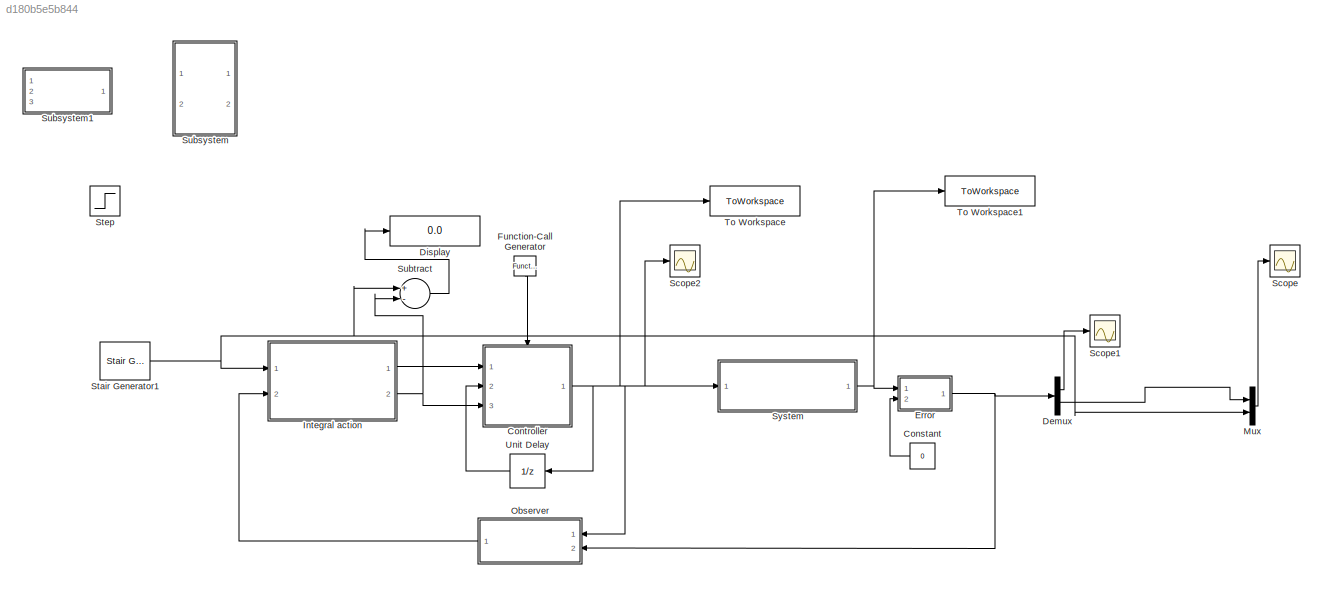
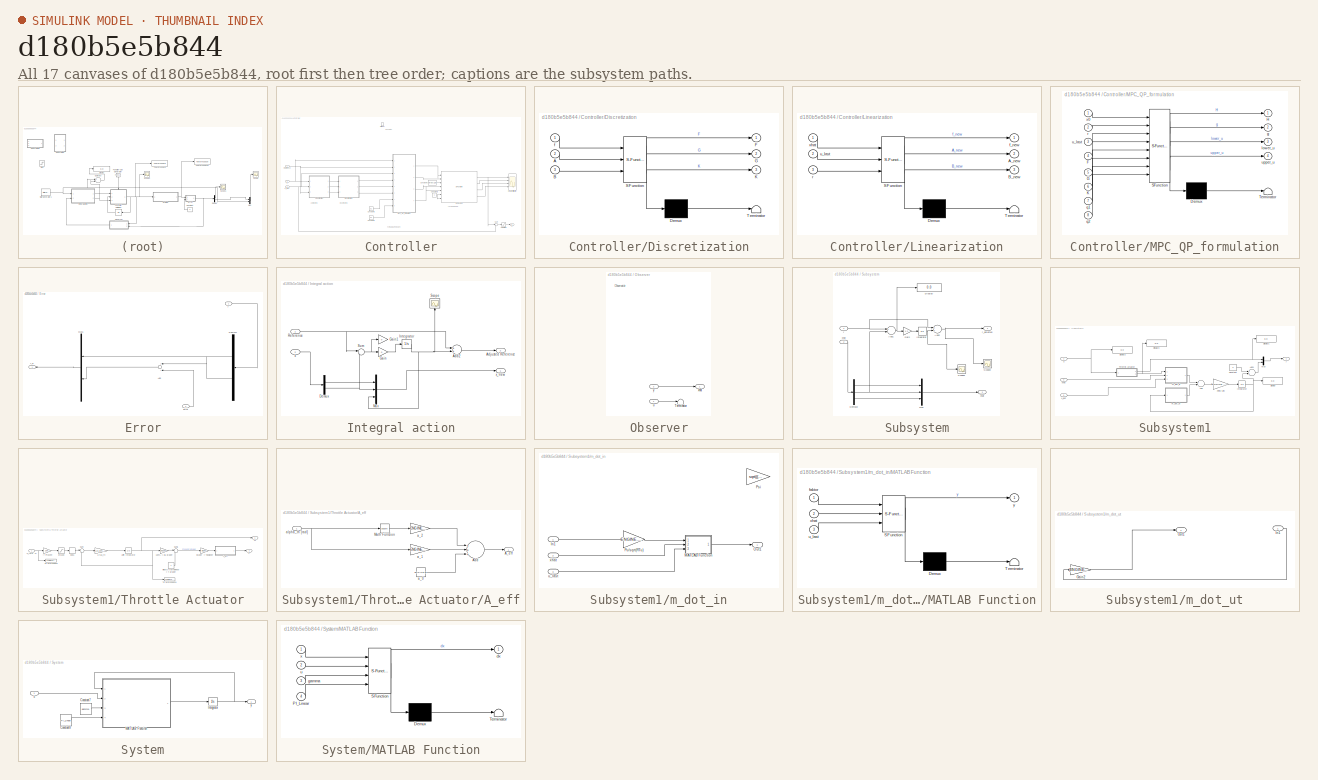
[diagram: thumbnail index - all 17 canvases of the model, root first then tree order]
MODEL slx_d180b5e5b844
KIND model
CONFIG AbsTol = auto
CONFIG EnableMultiTasking = on
CONFIG FixedStep = auto
CONFIG MaxStep = auto
CONFIG MinStep = auto
CONFIG RelTol = 1e-6
CONFIG SampleTimeConstraint = Unconstrained
CONFIG Solver = VariableStepAuto
CONFIG SolverName = VariableStepAuto
CONFIG StartTime = 0.0
CONFIG StopTime = 3
BLOCK [Constant] Constant
  Value = 0
BLOCK [SubSystem] Controller
  Ports = [3, 1, 0, 1]
  RequestExecContextInheritance = off
BLOCK [Constant] Controller/Constant2
  Value = 0
BLOCK [Constant] Controller/Constant5
  Value = q1
BLOCK [Constant] Controller/Constant6
  Value = q2
BLOCK [Constant] Controller/Constant7
  Value = zeros(1,N)
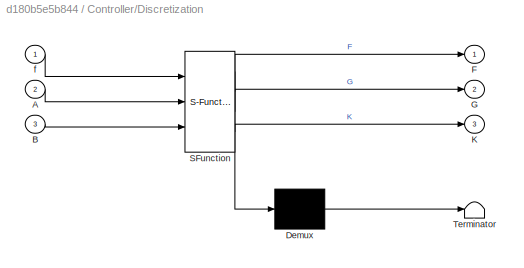
BLOCK [SubSystem] Controller/Discretization
  ErrorFcn = Stateflow.Translate.translate
  PermitHierarchicalResolution = ExplicitOnly
  Ports = [3, 3]
  RequestExecContextInheritance = off
  SFBlockType = MATLAB Function
  TreatAsAtomicUnit = on
BLOCK [Demux] Controller/Discretization/ Demux 
  Outputs = 1
  Ports = [1, 1]
BLOCK [S-Function] Controller/Discretization/ SFunction 
  EnableBusSupport = on
  FunctionName = sf_sfun
  Parameters = Ts
  PortCounts = [3 4]
  Ports = [3, 4]
  SFcnIsStateOwnerBlock = off
  SFunctionDeploymentMode = off
  Tag = Stateflow S-Function 3
BLOCK [Terminator] Controller/Discretization/ Terminator 
BLOCK [Inport] Controller/Discretization/A
  IconDisplay = Port number
  Port = 2
BLOCK [Inport] Controller/Discretization/B
  IconDisplay = Port number
  Port = 3
BLOCK [Outport] Controller/Discretization/F
  IconDisplay = Port number
BLOCK [Outport] Controller/Discretization/G
  IconDisplay = Port number
  Port = 2
BLOCK [Outport] Controller/Discretization/K
  IconDisplay = Port number
  Port = 3
BLOCK [Inport] Controller/Discretization/f
  IconDisplay = Port number
BLOCK [SubSystem] Controller/Linearization
  ErrorFcn = Stateflow.Translate.translate
  PermitHierarchicalResolution = ExplicitOnly
  Ports = [3, 3]
  RequestExecContextInheritance = off
  SFBlockType = MATLAB Function
  TreatAsAtomicUnit = on
BLOCK [Demux] Controller/Linearization/ Demux 
  Outputs = 1
  Ports = [1, 1]
BLOCK [S-Function] Controller/Linearization/ SFunction 
  EnableBusSupport = on
  FunctionName = sf_sfun
  Parameters = gamma,x0
  PortCounts = [3 4]
  Ports = [3, 4]
  SFcnIsStateOwnerBlock = off
  SFunctionDeploymentMode = off
  Tag = Stateflow S-Function 1
BLOCK [Terminator] Controller/Linearization/ Terminator 
BLOCK [Outport] Controller/Linearization/A_new
  IconDisplay = Port number
  Port = 2
BLOCK [Outport] Controller/Linearization/B_new
  IconDisplay = Port number
  Port = 3
BLOCK [Outport] Controller/Linearization/f_new
  IconDisplay = Port number
BLOCK [Inport] Controller/Linearization/r
  IconDisplay = Port number
  Port = 3
BLOCK [Inport] Controller/Linearization/u_last
  IconDisplay = Port number
  Port = 2
BLOCK [Inport] Controller/Linearization/xhat
  IconDisplay = Port number
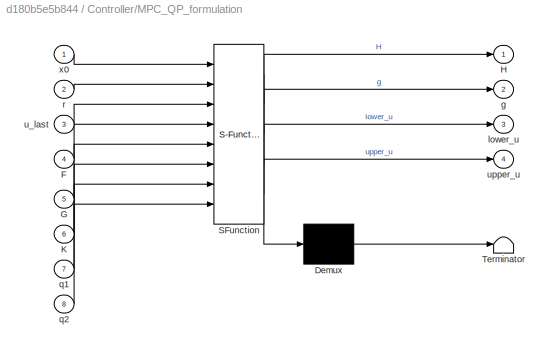
BLOCK [SubSystem] Controller/MPC_QP_formulation
  ErrorFcn = Stateflow.Translate.translate
  PermitHierarchicalResolution = ExplicitOnly
  Ports = [8, 4]
  RequestExecContextInheritance = off
  SFBlockType = MATLAB Function
  TreatAsAtomicUnit = on
BLOCK [Demux] Controller/MPC_QP_formulation/ Demux 
  Outputs = 1
  Ports = [1, 1]
BLOCK [S-Function] Controller/MPC_QP_formulation/ SFunction 
  EnableBusSupport = on
  FunctionName = sf_sfun
  Parameters = M,N,m,n
  PortCounts = [8 5]
  Ports = [8, 5]
  SFcnIsStateOwnerBlock = off
  SFunctionDeploymentMode = off
  Tag = Stateflow S-Function 4
BLOCK [Terminator] Controller/MPC_QP_formulation/ Terminator 
BLOCK [Inport] Controller/MPC_QP_formulation/F
  IconDisplay = Port number
  Port = 4
BLOCK [Inport] Controller/MPC_QP_formulation/G
  IconDisplay = Port number
  Port = 5
BLOCK [Outport] Controller/MPC_QP_formulation/H
  IconDisplay = Port number
BLOCK [Inport] Controller/MPC_QP_formulation/K
  IconDisplay = Port number
  Port = 6
BLOCK [Outport] Controller/MPC_QP_formulation/g
  IconDisplay = Port number
  Port = 2
BLOCK [Outport] Controller/MPC_QP_formulation/lower_u
  IconDisplay = Port number
  Port = 3
BLOCK [Inport] Controller/MPC_QP_formulation/q1
  IconDisplay = Port number
  Port = 7
BLOCK [Inport] Controller/MPC_QP_formulation/q2
  IconDisplay = Port number
  Port = 8
BLOCK [Inport] Controller/MPC_QP_formulation/r
  IconDisplay = Port number
  Port = 2
BLOCK [Inport] Controller/MPC_QP_formulation/u_last
  IconDisplay = Port number
  Port = 3
BLOCK [Outport] Controller/MPC_QP_formulation/upper_u
  IconDisplay = Port number
  Port = 4
BLOCK [Inport] Controller/MPC_QP_formulation/x0
  IconDisplay = Port number
BLOCK [Inport] Controller/Reference
  IconDisplay = Port number
  Port = 3
BLOCK [Saturate] Controller/Saturation
  InputPortMap = u0
  LowerLimit = 0
  Ports = [1, 1]
  UpperLimit = 1
BLOCK [Sum] Controller/Sum
  IconShape = round
  InputSameDT = off
  Inputs = |++
  OutDataTypeStr = Inherit: Inherit via internal rule
  Ports = [2, 1]
  SaturateOnIntegerOverflow = off
BLOCK [TriggerPort] Controller/Trigger
  PortDimensions = 1
  Ports = []
  StatesWhenEnabling = held
  TriggerType = function-call
  VariantControl = Variant
BLOCK [S-Function] Controller/qpOASES
  EnableBusSupport = off
  FunctionName = qpOASES_SQProblem
  Ports = [7, 4]
  SFcnIsStateOwnerBlock = off
  SFunctionDeploymentMode = off
BLOCK [Outport] Controller/u
  IconDisplay = Port number
BLOCK [Inport] Controller/u_last
  IconDisplay = Port number
  Port = 2
  PortDimensions = 1
BLOCK [Inport] Controller/x
  IconDisplay = Port number
BLOCK [Scope] Controller/x, fval, exitflag, iter
  Floating = off
  NumInputPorts = 4
  Ports = [4]
  ScopeSpecificationString = Simulink.scopes.TimeScopeBlockCfg('CurrentConfiguration', extmgr.ConfigurationSet(extmgr.Configuration('Core','General UI',true),extmgr.Configuration('Core','Source UI',true),extmgr.Configuration('Sources','WiredSimulink',true),extmgr.Configuration('Visuals','Time Domain',true,'SerializedDisplays',{struct('MinYLimReal','-125000000000000000000.00000','MaxYLimReal','125000000000000000000.00000','YLa...<+3557ch>
BLOCK [Demux] Demux
  DisplayOption = bar
  Outputs = 2
  Ports = [1, 2]
BLOCK [Display] Display
  Decimation = 1
  Ports = [1]
BLOCK [SubSystem] Error
  Ports = [2, 1]
  RequestExecContextInheritance = off
BLOCK [Sum] Error/Add
  InputSameDT = off
  OutDataTypeStr = Inherit: Inherit via internal rule
  Ports = [2, 1]
  SaturateOnIntegerOverflow = off
BLOCK [Demux] Error/Demux1
  DisplayOption = bar
  Outputs = 2
  Ports = [1, 2]
BLOCK [Inport] Error/Error
  IconDisplay = Port number
  Port = 2
BLOCK [Mux] Error/Mux1
  DisplayOption = bar
  Inputs = 2
  Ports = [2, 1]
BLOCK [Inport] Error/y
  IconDisplay = Port number
BLOCK [Outport] Error/y_e
  IconDisplay = Port number
BLOCK [Reference] Function-Call Generator  REF=simulink/Ports &
Subsystems/Function-Call
Generator
  Ports = [0, 1]
  SourceBlock = simulink/Ports &\nSubsystems/Function-Call\nGenerator
  SourceProductBaseCode = SL
  SourceProductName = Simulink
  SourceType = Function-Call Generator
BLOCK [SubSystem] Integral action
  Ports = [2, 2]
  RequestExecContextInheritance = off
BLOCK [Sum] Integral action/Add2
  InputSameDT = off
  OutDataTypeStr = Inherit: Inherit via internal rule
  Ports = [2, 1]
  SaturateOnIntegerOverflow = off
BLOCK [Outport] Integral action/Adjusted Reference
  IconDisplay = Port number
  Port = 2
BLOCK [Demux] Integral action/Demux
  DisplayOption = bar
  Outputs = 2
  Ports = [1, 2]
BLOCK [Gain] Integral action/Gain
  Gain = 0
  OutDataTypeStr = Inherit: Inherit via internal rule
  ParamDataTypeStr = Inherit: Inherit via internal rule
  SaturateOnIntegerOverflow = off
BLOCK [Gain] Integral action/Gain1
  Commented = on
  Gain = 0
  OutDataTypeStr = Inherit: Inherit via internal rule
  ParamDataTypeStr = Inherit: Inherit via internal rule
  SaturateOnIntegerOverflow = off
BLOCK [Integrator] Integral action/Integrator
  Ports = [1, 1]
BLOCK [Mux] Integral action/Mux
  DisplayOption = bar
  Inputs = 3
  Ports = [3, 1]
BLOCK [Inport] Integral action/Reference
  IconDisplay = Port number
BLOCK [Scope] Integral action/Scope
  Floating = off
  NumInputPorts = 1
  Ports = [1]
  ScopeSpecificationString = Simulink.scopes.TimeScopeBlockCfg('CurrentConfiguration', extmgr.ConfigurationSet(extmgr.Configuration('Core','General UI',true),extmgr.Configuration('Core','Source UI',true),extmgr.Configuration('Sources','WiredSimulink',true,'DataLoggingVariableName','ScopeData1'),extmgr.Configuration('Visuals','Time Domain',true,'SerializedDisplays',{struct('MinYLimReal','-1232.13039','MaxYLimReal','136.90338',...<+1443ch>
BLOCK [Sum] Integral action/Sum
  IconShape = round
  InputSameDT = off
  Inputs = |+-
  OutDataTypeStr = Inherit: Inherit via internal rule
  Ports = [2, 1]
  SaturateOnIntegerOverflow = off
BLOCK [Inport] Integral action/x
  IconDisplay = Port number
  Port = 2
BLOCK [Outport] Integral action/x_new
  IconDisplay = Port number
BLOCK [Mux] Mux
  DisplayOption = bar
  Inputs = 2
  Ports = [2, 1]
BLOCK [SubSystem] Observer
  Ports = [2, 1]
  RequestExecContextInheritance = off
BLOCK [Terminator] Observer/Terminator
BLOCK [Inport] Observer/u
  IconDisplay = Port number
BLOCK [Outport] Observer/xhat
  IconDisplay = Port number
BLOCK [Inport] Observer/y
  IconDisplay = Port number
  Port = 2
BLOCK [Scope] Scope
  Floating = off
  NumInputPorts = 1
  Ports = [1]
  ScopeSpecificationString = Simulink.scopes.TimeScopeBlockCfg('CurrentConfiguration', extmgr.ConfigurationSet(extmgr.Configuration('Core','General UI',true),extmgr.Configuration('Core','Source UI',true),extmgr.Configuration('Sources','WiredSimulink',true,'DataLoggingVariableName','ScopeData1'),extmgr.Configuration('Visuals','Time Domain',true,'SerializedDisplays',{struct('MinYLimReal','12499.99638','MaxYLimReal','87500.0004'...<+1486ch>
BLOCK [Scope] Scope1
  Floating = off
  NumInputPorts = 1
  Ports = [1]
  ScopeSpecificationString = Simulink.scopes.TimeScopeBlockCfg('CurrentConfiguration', extmgr.ConfigurationSet(extmgr.Configuration('Core','General UI',true),extmgr.Configuration('Core','Source UI',true),extmgr.Configuration('Sources','WiredSimulink',true,'DataLoggingVariableName','ScopeData2'),extmgr.Configuration('Visuals','Time Domain',true,'SerializedDisplays',{struct('MinYLimReal','0.13102','MaxYLimReal','0.59068','YLabe...<+1364ch>
BLOCK [Scope] Scope2
  Floating = off
  NumInputPorts = 1
  Ports = [1]
  ScopeSpecificationString = Simulink.scopes.TimeScopeBlockCfg('CurrentConfiguration', extmgr.ConfigurationSet(extmgr.Configuration('Core','General UI',true),extmgr.Configuration('Core','Source UI',true),extmgr.Configuration('Sources','WiredSimulink',true,'DataLoggingVariableName','ScopeData3'),extmgr.Configuration('Visuals','Time Domain',true,'SerializedDisplays',{struct('MinYLimReal','-0.05623','MaxYLimReal','1.11736','YLab...<+1394ch>
BLOCK [Reference] Stair Generator1  REF=powerlib_meascontrol/Pulse & Signal
Generators/Stair
Generator
  Ports = [0, 1]
  SourceBlock = powerlib_meascontrol/Pulse & Signal\nGenerators/Stair\nGenerator
  SourceProductBaseCode = PS
  SourceProductName = Simscape Electrical
  SourceType = Stair Generator
BLOCK [Step] Step
  After = 6e4
  Before = 2e4
  Commented = on
  SampleTime = 0
  Time = 4
BLOCK [SubSystem] Subsystem
  Commented = on
  Ports = [2, 2]
  RequestExecContextInheritance = off
BLOCK [Sum] Subsystem/Add1
  InputSameDT = off
  Inputs = +-
  OutDataTypeStr = Inherit: Inherit via internal rule
  Ports = [2, 1]
  SaturateOnIntegerOverflow = off
BLOCK [Sum] Subsystem/Add2
  InputSameDT = off
  OutDataTypeStr = Inherit: Inherit via internal rule
  Ports = [2, 1]
  SaturateOnIntegerOverflow = off
BLOCK [Demux] Subsystem/Demux2
  DisplayOption = bar
  Outputs = 3
  Ports = [1, 3]
BLOCK [Display] Subsystem/Display
  Decimation = 1
  Ports = [1]
BLOCK [Gain] Subsystem/Gain
  Gain = 1.2
  OutDataTypeStr = Inherit: Inherit via internal rule
  ParamDataTypeStr = Inherit: Inherit via internal rule
  SaturateOnIntegerOverflow = off
BLOCK [Integrator] Subsystem/Integrator
  Ports = [1, 1]
BLOCK [Mux] Subsystem/Mux
  DisplayOption = bar
  Inputs = 3
  Ports = [3, 1]
BLOCK [Scope] Subsystem/Scope1
  Floating = off
  NumInputPorts = 1
  Ports = [1]
  ScopeSpecificationString = Simulink.scopes.TimeScopeBlockCfg('CurrentConfiguration', extmgr.ConfigurationSet(extmgr.Configuration('Core','General UI',true),extmgr.Configuration('Core','Source UI',true),extmgr.Configuration('Sources','WiredSimulink',true,'DataLoggingVariableName','ScopeData2'),extmgr.Configuration('Visuals','Time Domain',true,'SerializedDisplays',{struct('MinYLimReal','-113.13235','MaxYLimReal','1017.29075',...<+1412ch>
BLOCK [Scope] Subsystem/Scope2
  Floating = off
  NumInputPorts = 1
  Ports = [1]
  ScopeSpecificationString = Simulink.scopes.TimeScopeBlockCfg('CurrentConfiguration', extmgr.ConfigurationSet(extmgr.Configuration('Core','General UI',true),extmgr.Configuration('Core','Source UI',true),extmgr.Configuration('Sources','WiredSimulink',true,'DataLoggingVariableName','ScopeData3'),extmgr.Configuration('Visuals','Time Domain',true,'SerializedDisplays',{struct('MinYLimReal','3886.86765','MaxYLimReal','45017.29075'...<+1414ch>
BLOCK [Inport] Subsystem/r
  IconDisplay = Port number
BLOCK [Outport] Subsystem/r_adjusted
  IconDisplay = Port number
BLOCK [Inport] Subsystem/xhat
  IconDisplay = Port number
  Port = 2
BLOCK [Outport] Subsystem/xhat 
  IconDisplay = Port number
  Port = 2
BLOCK [SubSystem] Subsystem1
  Commented = on
  Ports = [3, 1]
  RequestExecContextInheritance = off
BLOCK [Sum] Subsystem1/Add
  InputSameDT = off
  Inputs = +-
  OutDataTypeStr = Inherit: Inherit via internal rule
  Ports = [2, 1]
  SaturateOnIntegerOverflow = off
BLOCK [Sum] Subsystem1/Add1
  InputSameDT = off
  OutDataTypeStr = Inherit: Inherit via internal rule
  Ports = [2, 1]
  SaturateOnIntegerOverflow = off
BLOCK [Constant] Subsystem1/Constant
  Value = 0
BLOCK [Display] Subsystem1/Display
  Decimation = 1
  Ports = [1]
BLOCK [Display] Subsystem1/Display1
  Decimation = 1
  Ports = [1]
BLOCK [Display] Subsystem1/Display2
  Decimation = 1
  Ports = [1]
BLOCK [Display] Subsystem1/Display3
  Decimation = 1
  Ports = [1]
BLOCK [Integrator] Subsystem1/Integrator
  InitialCondition = 25000
  Ports = [1, 1]
BLOCK [Mux] Subsystem1/Mux
  DisplayOption = bar
  Inputs = 2
  Ports = [2, 1]
BLOCK [Gain] Subsystem1/RTim//Vim
  Gain = ENGINE.R*ENGINE.Tim/ENGINE.Vim
  OutDataTypeStr = Inherit: Inherit via internal rule
  ParamDataTypeStr = Inherit: Inherit via internal rule
  SaturateOnIntegerOverflow = off
BLOCK [SubSystem] Subsystem1/Throttle Actuator
  Ports = [1, 2]
  RequestExecContextInheritance = off
BLOCK [Gain] Subsystem1/Throttle Actuator/-> Procent
  Gain = 100
  OutDataTypeStr = Inherit: Inherit via internal rule
  ParamDataTypeStr = Inherit: Inherit via internal rule
  SaturateOnIntegerOverflow = off
BLOCK [TransportDelay] Subsystem1/Throttle Actuator/0p01
  DelayTime = 0.02
  Ports = [1, 1]
BLOCK [Saturate] Subsystem1/Throttle Actuator/0to100
  InputPortMap = u0
  LowerLimit = 0
  Ports = [1, 1]
  UpperLimit = 100
BLOCK [Gain] Subsystem1/Throttle Actuator/1//tau_th
  Gain = 1/0.04426
  OutDataTypeStr = Inherit: Inherit via internal rule
  ParamDataTypeStr = Inherit: Inherit via internal rule
  SaturateOnIntegerOverflow = off
BLOCK [Gain] Subsystem1/Throttle Actuator/100% = 86 grader
  Gain = 86/100
  OutDataTypeStr = Inherit: Inherit via internal rule
  ParamDataTypeStr = Inherit: Inherit via internal rule
  SaturateOnIntegerOverflow = off
BLOCK [Outport] Subsystem1/Throttle Actuator/A 
  IconDisplay = Port number
  Port = 2
  VectorParamsAs1DForOutWhenUnconnected = off
BLOCK [SubSystem] Subsystem1/Throttle Actuator/A_eff
  Ports = [1, 1]
  RequestExecContextInheritance = off
BLOCK [Outport] Subsystem1/Throttle Actuator/A_eff/A_eff
  IconDisplay = Port number
  VectorParamsAs1DForOutWhenUnconnected = off
BLOCK [Sum] Subsystem1/Throttle Actuator/A_eff/Add
  InputSameDT = off
  Inputs = +++
  OutDataTypeStr = Inherit: Inherit via internal rule
  Ports = [3, 1]
  SaturateOnIntegerOverflow = off
BLOCK [Math] Subsystem1/Throttle Actuator/A_eff/Math Function
  Operator = square
  Ports = [1, 1]
BLOCK [Constant] Subsystem1/Throttle Actuator/A_eff/a_0
  Value = ENGINE.a0
BLOCK [Gain] Subsystem1/Throttle Actuator/A_eff/a_1
  Gain = ENGINE.a1
  OutDataTypeStr = Inherit: Inherit via internal rule
  ParamDataTypeStr = Inherit: Inherit via internal rule
  SaturateOnIntegerOverflow = off
BLOCK [Gain] Subsystem1/Throttle Actuator/A_eff/a_2
  Gain = ENGINE.a2
  OutDataTypeStr = Inherit: Inherit via internal rule
  ParamDataTypeStr = Inherit: Inherit via internal rule
  SaturateOnIntegerOverflow = off
BLOCK [Inport] Subsystem1/Throttle Actuator/A_eff/alpha_th [rad]
  IconDisplay = Port number
BLOCK [Gain] Subsystem1/Throttle Actuator/Grader -> Radianer
  Gain = pi/180
  OutDataTypeStr = Inherit: Inherit via internal rule
  ParamDataTypeStr = Inherit: Inherit via internal rule
  SaturateOnIntegerOverflow = off
BLOCK [Integrator] Subsystem1/Throttle Actuator/Limit Integrator
  LimitOutput = on
  LowerSaturationLimit = 0
  Ports = [1, 1]
  UpperSaturationLimit = 100
BLOCK [Constant] Subsystem1/Throttle Actuator/Minsta trottelvinkel = 4 grader
  Value = 4
BLOCK [Sum] Subsystem1/Throttle Actuator/Sum
  IconShape = round
  InputSameDT = off
  Inputs = |+-
  OutDataTypeStr = Inherit: Inherit via internal rule
  Ports = [2, 1]
  SaturateOnIntegerOverflow = off
BLOCK [Sum] Subsystem1/Throttle Actuator/Sum1
  IconShape = round
  InputSameDT = off
  Inputs = |++
  OutDataTypeStr = Inherit: Inherit via internal rule
  Ports = [2, 1]
  SaturateOnIntegerOverflow = off
BLOCK [ToWorkspace] Subsystem1/Throttle Actuator/To Workspace
  MaxDataPoints = inf
  Ports = [1]
  SampleTime = -1
  VariableName = u_th
BLOCK [ToWorkspace] Subsystem1/Throttle Actuator/To Workspace1
  MaxDataPoints = inf
  Ports = [1]
  SampleTime = -1
  VariableName = pct_thr
BLOCK [Inport] Subsystem1/Throttle Actuator/u_th[0..1]
  IconDisplay = Port number
BLOCK [Outport] Subsystem1/Throttle Actuator/x1 
  IconDisplay = Port number
  VectorParamsAs1DForOutWhenUnconnected = off
BLOCK [SubSystem] Subsystem1/m_dot_in
  Ports = [3, 1]
  RequestExecContextInheritance = off
BLOCK [Inport] Subsystem1/m_dot_in/In1
  IconDisplay = Port number
BLOCK [SubSystem] Subsystem1/m_dot_in/MATLAB Function
  ErrorFcn = Stateflow.Translate.translate
  PermitHierarchicalResolution = ExplicitOnly
  Ports = [3, 1]
  RequestExecContextInheritance = off
  SFBlockType = MATLAB Function
  TreatAsAtomicUnit = on
BLOCK [Demux] Subsystem1/m_dot_in/MATLAB Function/ Demux 
  Outputs = 1
  Ports = [1, 1]
BLOCK [S-Function] Subsystem1/m_dot_in/MATLAB Function/ SFunction 
  EnableBusSupport = on
  FunctionName = sf_sfun
  Parameters = gamma
  PortCounts = [3 2]
  Ports = [3, 2]
  SFcnIsStateOwnerBlock = off
  SFunctionDeploymentMode = off
  Tag = Stateflow S-Function 5
BLOCK [Terminator] Subsystem1/m_dot_in/MATLAB Function/ Terminator 
BLOCK [Inport] Subsystem1/m_dot_in/MATLAB Function/faktor
  IconDisplay = Port number
BLOCK [Inport] Subsystem1/m_dot_in/MATLAB Function/u_last
  IconDisplay = Port number
  Port = 3
BLOCK [Inport] Subsystem1/m_dot_in/MATLAB Function/xhat
  IconDisplay = Port number
  Port = 2
BLOCK [Outport] Subsystem1/m_dot_in/MATLAB Function/y
  IconDisplay = Port number
BLOCK [Outport] Subsystem1/m_dot_in/Out1
  IconDisplay = Port number
  VectorParamsAs1DForOutWhenUnconnected = off
BLOCK [Gain] Subsystem1/m_dot_in/Psi
  Commented = on
  Gain = sqrt(((ENGINE.gamma+1)/(2*ENGINE.gamma))*(1-PI_Input)*(PI_Input+((ENGINE.gamma-1)/(ENGINE.gamma+1))))
  OutDataTypeStr = Inherit: Inherit via internal rule
  ParamDataTypeStr = Inherit: Inherit via internal rule
  SaturateOnIntegerOverflow = off
BLOCK [Gain] Subsystem1/m_dot_in/Pu//sqrt(RTu)
  Gain = ENGINE.pa/sqrt(ENGINE.R*ENGINE.Ta)
  OutDataTypeStr = Inherit: Inherit via internal rule
  ParamDataTypeStr = Inherit: Inherit via internal rule
  SaturateOnIntegerOverflow = off
BLOCK [Inport] Subsystem1/m_dot_in/u_last
  IconDisplay = Port number
  Port = 3
BLOCK [Inport] Subsystem1/m_dot_in/xhat
  IconDisplay = Port number
  Port = 2
BLOCK [SubSystem] Subsystem1/m_dot_ut
  Ports = [1, 1]
  RequestExecContextInheritance = off
BLOCK [Gain] Subsystem1/m_dot_ut/Gain2
  Gain = (ENGINE.eta*ENGINE.Vd*ENGINE.N)/(ENGINE.nr*ENGINE.R*ENGINE.Tim)
  OutDataTypeStr = Inherit: Inherit via internal rule
  ParamDataTypeStr = Inherit: Inherit via internal rule
  SaturateOnIntegerOverflow = off
BLOCK [Inport] Subsystem1/m_dot_ut/In1
  IconDisplay = Port number
BLOCK [Outport] Subsystem1/m_dot_ut/Out1
  IconDisplay = Port number
  VectorParamsAs1DForOutWhenUnconnected = off
BLOCK [Inport] Subsystem1/u
  IconDisplay = Port number
BLOCK [Inport] Subsystem1/u_last
  IconDisplay = Port number
  Port = 3
BLOCK [Inport] Subsystem1/xhat 
  IconDisplay = Port number
  Port = 2
BLOCK [Outport] Subsystem1/y
  IconDisplay = Port number
  PortDimensions = 2
  VectorParamsAs1DForOutWhenUnconnected = off
BLOCK [Sum] Subtract
  InputSameDT = off
  Inputs = +-
  OutDataTypeStr = Inherit: Inherit via internal rule
  Ports = [2, 1]
  SaturateOnIntegerOverflow = off
BLOCK [SubSystem] System
  Ports = [1, 1]
  RequestExecContextInheritance = off
BLOCK [Constant] System/Constant7
  Value = gamma
BLOCK [Constant] System/Constant8
  Value = PI_Linear
BLOCK [Integrator] System/Integrator
  InitialCondition = x0_plant
  Ports = [1, 1]
BLOCK [SubSystem] System/MATLAB Function
  ErrorFcn = Stateflow.Translate.translate
  PermitHierarchicalResolution = ExplicitOnly
  Ports = [4, 1]
  RequestExecContextInheritance = off
  SFBlockType = MATLAB Function
  TreatAsAtomicUnit = on
BLOCK [Demux] System/MATLAB Function/ Demux 
  Outputs = 1
  Ports = [1, 1]
BLOCK [S-Function] System/MATLAB Function/ SFunction 
  EnableBusSupport = on
  FunctionName = sf_sfun
  PortCounts = [4 2]
  Ports = [4, 2]
  SFcnIsStateOwnerBlock = off
  SFunctionDeploymentMode = off
  Tag = Stateflow S-Function 6
BLOCK [Terminator] System/MATLAB Function/ Terminator 
BLOCK [Inport] System/MATLAB Function/PI_Linear
  IconDisplay = Port number
  Port = 4
BLOCK [Outport] System/MATLAB Function/dx
  IconDisplay = Port number
BLOCK [Inport] System/MATLAB Function/gamma
  IconDisplay = Port number
  Port = 3
BLOCK [Inport] System/MATLAB Function/u
  IconDisplay = Port number
  Port = 2
BLOCK [Inport] System/MATLAB Function/x
  IconDisplay = Port number
BLOCK [Inport] System/u
  IconDisplay = Port number
BLOCK [Outport] System/y
  IconDisplay = Port number
BLOCK [ToWorkspace] To Workspace
  FixptAsFi = on
  MaxDataPoints = inf
  Ports = [1]
  SampleTime = -1
  SaveFormat = Structure With Time
  VariableName = mpc1_u
BLOCK [ToWorkspace] To Workspace1
  FixptAsFi = on
  MaxDataPoints = inf
  Ports = [1]
  SampleTime = -1
  SaveFormat = Structure With Time
  VariableName = mpc1_states
BLOCK [UnitDelay] Unit Delay
  HasFrameUpgradeWarning = on
  InitialCondition = x0(1)
  SampleTime = Ts
ANNOTATION Controller: Diskretisering
ANNOTATION Controller: Formulera QP-problem
ANNOTATION Controller: Linjärisering
ANNOTATION Controller: Lös QP-problem
ANNOTATION Controller: Regulator
ANNOTATION Observer: Observatör
LINE Constant:1 -> Error:2
NET Controller/Constant2:1 -> Controller/qpOASES:6, Controller/qpOASES:7
LINE Controller/Constant5:1 -> Controller/MPC_QP_formulation:7
LINE Controller/Constant6:1 -> Controller/MPC_QP_formulation:8
LINE Controller/Constant7:1 -> Controller/qpOASES:3
LINE Controller/Discretization:1 -> Controller/MPC_QP_formulation:4
LINE Controller/Discretization:2 -> Controller/MPC_QP_formulation:5
LINE Controller/Discretization:3 -> Controller/MPC_QP_formulation:6
LINE Controller/Linearization:1 -> Controller/Discretization:1
LINE Controller/Linearization:2 -> Controller/Discretization:2
LINE Controller/Linearization:3 -> Controller/Discretization:3
LINE Controller/MPC_QP_formulation:1 -> Controller/qpOASES:1
LINE Controller/MPC_QP_formulation:2 -> Controller/qpOASES:2
LINE Controller/MPC_QP_formulation:3 -> Controller/qpOASES:4
LINE Controller/MPC_QP_formulation:4 -> Controller/qpOASES:5
NET Controller/Reference:1 -> Controller/Linearization:3, Controller/MPC_QP_formulation:2
LINE Controller/Saturation:1 -> Controller/u:1
LINE Controller/Sum:1 -> Controller/Saturation:1
NET Controller/qpOASES:1 -> Controller/Sum:1, Controller/x, fval, exitflag, iter:1
LINE Controller/qpOASES:2 -> Controller/x, fval, exitflag, iter:2
LINE Controller/qpOASES:3 -> Controller/x, fval, exitflag, iter:3
LINE Controller/qpOASES:4 -> Controller/x, fval, exitflag, iter:4
NET Controller/u_last:1 -> Controller/Linearization:2, Controller/MPC_QP_formulation:3, Controller/Sum:2
NET Controller/x:1 -> Controller/Linearization:1, Controller/MPC_QP_formulation:1
NET Controller:1 -> Observer:1, Scope2:1, System:1, To Workspace:1, Unit Delay:1
LINE Demux:1 -> Scope1:1
LINE Demux:2 -> Mux:1
LINE Error/Add:1 -> Error/Mux1:2
LINE Error/Demux1:1 -> Error/Mux1:1
LINE Error/Demux1:2 -> Error/Add:1
LINE Error/Error:1 -> Error/Add:2
LINE Error/Mux1:1 -> Error/y_e:1
LINE Error/y:1 -> Error/Demux1:1
NET Error:1 -> Demux:1, Observer:2
LINE Function-Call Generator:1 -> Controller:trigger
LINE Integral action/Add2:1 -> Integral action/Adjusted Reference:1
LINE Integral action/Demux:1 -> Integral action/Mux:1
NET Integral action/Demux:2 -> Integral action/Mux:2, Integral action/Sum:2
LINE Integral action/Gain:1 -> Integral action/Integrator:1
NET Integral action/Integrator:1 -> Integral action/Add2:2, Integral action/Mux:3, Integral action/Scope:1
LINE Integral action/Mux:1 -> Integral action/x_new:1
NET Integral action/Reference:1 -> Integral action/Add2:1, Integral action/Sum:1
NET Integral action/Sum:1 -> Integral action/Gain1:1, Integral action/Gain:1
LINE Integral action/x:1 -> Integral action/Demux:1
LINE Integral action:1 -> Controller:1
NET Integral action:2 -> Controller:3, Subtract:2
LINE Mux:1 -> Scope:1
LINE Observer/u:1 -> Observer/Terminator:1
LINE Observer/y:1 -> Observer/xhat:1
LINE Observer:1 -> Integral action:2
NET Stair Generator1:1 -> Integral action:1, Mux:2, Subtract:1
NET Subsystem/Add1:1 -> Subsystem/Display:1, Subsystem/Gain:1
NET Subsystem/Add2:1 -> Subsystem/Scope2:1, Subsystem/r_adjusted:1
LINE Subsystem/Demux2:1 -> Subsystem/Mux:1
NET Subsystem/Demux2:2 -> Subsystem/Add1:2, Subsystem/Mux:2
LINE Subsystem/Demux2:3 -> Subsystem/Mux:3
LINE Subsystem/Gain:1 -> Subsystem/Integrator:1
NET Subsystem/Integrator:1 -> Subsystem/Add2:2, Subsystem/Scope1:1
LINE Subsystem/Mux:1 -> Subsystem/xhat :1
NET Subsystem/r:1 -> Subsystem/Add1:1, Subsystem/Add2:1
LINE Subsystem/xhat:1 -> Subsystem/Demux2:1
LINE Subsystem1/Add1:1 -> Subsystem1/Mux:2
LINE Subsystem1/Add:1 -> Subsystem1/RTim//Vim:1
LINE Subsystem1/Constant:1 -> Subsystem1/Add1:1
NET Subsystem1/Integrator:1 -> Subsystem1/Add1:2, Subsystem1/Display:1, Subsystem1/m_dot_ut:1
LINE Subsystem1/Mux:1 -> Subsystem1/y:1
LINE Subsystem1/RTim//Vim:1 -> Subsystem1/Integrator:1
LINE Subsystem1/Throttle Actuator/-> Procent:1 -> Subsystem1/Throttle Actuator/0to100:1
LINE Subsystem1/Throttle Actuator/0p01:1 -> Subsystem1/Throttle Actuator/Sum:1
LINE Subsystem1/Throttle Actuator/0to100:1 -> Subsystem1/Throttle Actuator/0p01:1
LINE Subsystem1/Throttle Actuator/1//tau_th:1 -> Subsystem1/Throttle Actuator/Limit Integrator:1
LINE Subsystem1/Throttle Actuator/100% = 86 grader:1 -> Subsystem1/Throttle Actuator/Sum1:1
LINE Subsystem1/Throttle Actuator/A_eff/Add:1 -> Subsystem1/Throttle Actuator/A_eff/A_eff:1
LINE Subsystem1/Throttle Actuator/A_eff/Math Function:1 -> Subsystem1/Throttle Actuator/A_eff/a_2:1
LINE Subsystem1/Throttle Actuator/A_eff/a_0:1 -> Subsystem1/Throttle Actuator/A_eff/Add:3
LINE Subsystem1/Throttle Actuator/A_eff/a_1:1 -> Subsystem1/Throttle Actuator/A_eff/Add:2
LINE Subsystem1/Throttle Actuator/A_eff/a_2:1 -> Subsystem1/Throttle Actuator/A_eff/Add:1
NET Subsystem1/Throttle Actuator/A_eff/alpha_th [rad]:1 -> Subsystem1/Throttle Actuator/A_eff/Math Function:1, Subsystem1/Throttle Actuator/A_eff/a_1:1
LINE Subsystem1/Throttle Actuator/A_eff:1 -> Subsystem1/Throttle Actuator/A :1
LINE Subsystem1/Throttle Actuator/Grader -> Radianer:1 -> Subsystem1/Throttle Actuator/A_eff:1
NET Subsystem1/Throttle Actuator/Limit Integrator:1 -> Subsystem1/Throttle Actuator/100% = 86 grader:1, Subsystem1/Throttle Actuator/Sum:2, Subsystem1/Throttle Actuator/To Workspace1:1, Subsystem1/Throttle Actuator/x1 :1
LINE Subsystem1/Throttle Actuator/Minsta trottelvinkel = 4 grader:1 -> Subsystem1/Throttle Actuator/Sum1:2
LINE Subsystem1/Throttle Actuator/Sum1:1 -> Subsystem1/Throttle Actuator/Grader -> Radianer:1
LINE Subsystem1/Throttle Actuator/Sum:1 -> Subsystem1/Throttle Actuator/1//tau_th:1
NET Subsystem1/Throttle Actuator/u_th[0..1]:1 -> Subsystem1/Throttle Actuator/-> Procent:1, Subsystem1/Throttle Actuator/To Workspace:1
NET Subsystem1/Throttle Actuator:1 -> Subsystem1/Display1:1, Subsystem1/Mux:1
NET Subsystem1/Throttle Actuator:2 -> Subsystem1/Display3:1, Subsystem1/m_dot_in:1
LINE Subsystem1/m_dot_in/In1:1 -> Subsystem1/m_dot_in/Pu//sqrt(RTu):1
LINE Subsystem1/m_dot_in/MATLAB Function:1 -> Subsystem1/m_dot_in/Out1:1
LINE Subsystem1/m_dot_in/Pu//sqrt(RTu):1 -> Subsystem1/m_dot_in/MATLAB Function:1
LINE Subsystem1/m_dot_in/u_last:1 -> Subsystem1/m_dot_in/MATLAB Function:3
LINE Subsystem1/m_dot_in/xhat:1 -> Subsystem1/m_dot_in/MATLAB Function:2
LINE Subsystem1/m_dot_in:1 -> Subsystem1/Add:1
LINE Subsystem1/m_dot_ut/Gain2:1 -> Subsystem1/m_dot_ut/Out1:1
LINE Subsystem1/m_dot_ut/In1:1 -> Subsystem1/m_dot_ut/Gain2:1
LINE Subsystem1/m_dot_ut:1 -> Subsystem1/Add:2
NET Subsystem1/u:1 -> Subsystem1/Display2:1, Subsystem1/Throttle Actuator:1
LINE Subsystem1/u_last:1 -> Subsystem1/m_dot_in:3
LINE Subsystem1/xhat :1 -> Subsystem1/m_dot_in:2
LINE Subtract:1 -> Display:1
LINE System/Constant7:1 -> System/MATLAB Function:3
LINE System/Constant8:1 -> System/MATLAB Function:4
NET System/Integrator:1 -> System/MATLAB Function:1, System/y:1
LINE System/MATLAB Function:1 -> System/Integrator:1
LINE System/u:1 -> System/MATLAB Function:2
NET System:1 -> Error:1, To Workspace1:1
LINE Unit Delay:1 -> Controller:2
note: NET lines group one-source signal fan-out (src -> all destinations, sorted); 1:1 wires keep LINE
CHART Controller/Linearization states=1 transitions=1
  STATE_LABEL 'eML_blk_kernel()'
  STATE_LABEL 'SCRIPT:\nfunction [f_new,A_new,B_new] = fcn(xhat,u_last,gamma,r,x0)\nPI_Input = PI_function(xhat, u_last);\nPI_Critical = 1/(gamma+1);\n\nA_shell = zeros(3,3);\nB_shell = zeros(3,1);\nf_shell = zeros(3,1);\n    if PI_Input < PI_Critical\n        A = mpcControllerA_1(xhat,u_last);\n        B = mpcControllerB_1(xhat,u_last);\n        f = mpcControllerf_1(xhat,u_last);\n    elseif PI_Input <= 0.99\n        A = mp...<+454ch>'
CHART Controller/Discretization states=1 transitions=1
  STATE_LABEL 'eML_blk_kernel()'
  STATE_LABEL 'SCRIPT:\n% x_k+1 = x_k + Ts*(Ax_k+Bu_k) = [I+Ts*A]*x_k + Ts*B*u_k\n% F = [I+Ts*A]\n% G = Ts*B\nfunction [F,G,K] = Discretize(f,A,B,Ts)\n    F = eye(size(A))+Ts*A;\n    G = Ts*B;\n    K = Ts*f;\nend'
CHART Controller/MPC_QP_formulation states=1 transitions=1
  STATE_LABEL 'eML_blk_kernel()'
  STATE_LABEL 'SCRIPT:\nfunction [H,g,lower_u,upper_u] = MPC_vectorize(x0,r,u_last,F,G,K,q1,q2,n, m, N, M)\n    H = zeros(m^2*N^2,1);\n    \n    constraint_upper = 1; % Set upper constraint for u\n    constraint_lower = 0; % Set upper constraint for u\n    lower_u = (constraint_lower-u_last)*ones(N,1);\n    upper_u = (constraint_upper-u_last)*ones(N,1);\n    \n    x0 = repmat(x0,[N,1]);\n    U0 = repmat(u_last,[N,1]);\n   ...<+903ch>'
CHART Subsystem1/m_dot_in/MATLAB Function states=1 transitions=1
  STATE_LABEL 'eML_blk_kernel()'
  STATE_LABEL "SCRIPT:\nfunction y = fcn(faktor,xhat,u_last,gamma)\nPIL=0.99;\nPI_Input = PI(xhat, u_last);\nif (PI_Input >= 1/(gamma+1) && PI_Input <= 0.99 )\n    y = faktor*mpcControllerPSI_standard(xhat,u_last);\n    PI_Used = ('Standard PI');\nelseif (PI_Input > 0.99)\n    y = faktor*( sqrt(((2*gamma)/(gamma-1))...\n    *((PIL^(2/gamma))-(PIL^((gamma+1)...\n    /(gamma))))));\n    PI_Used = ('Linear PI');\nelse\n    y = ...<+152ch>"
CHART System/MATLAB Function states=1 transitions=1
  STATE_LABEL 'eML_blk_kernel()'
  STATE_LABEL 'SCRIPT:\nfunction dx = fcn(x,u,gamma,PI_Linear)\nPI_Input = PI_function(x,u);\nPI_Critical = 1/(gamma+1);\n\n    if PI_Input < PI_Critical\n        dx = mpcControllerf_plant_1(x,u);\n    elseif PI_Input <= PI_Linear\n        dx = mpcControllerf_plant_2(x,u);\n    else\n        dx = mpcControllerf_plant_3(x,u);\n    end\nend'
